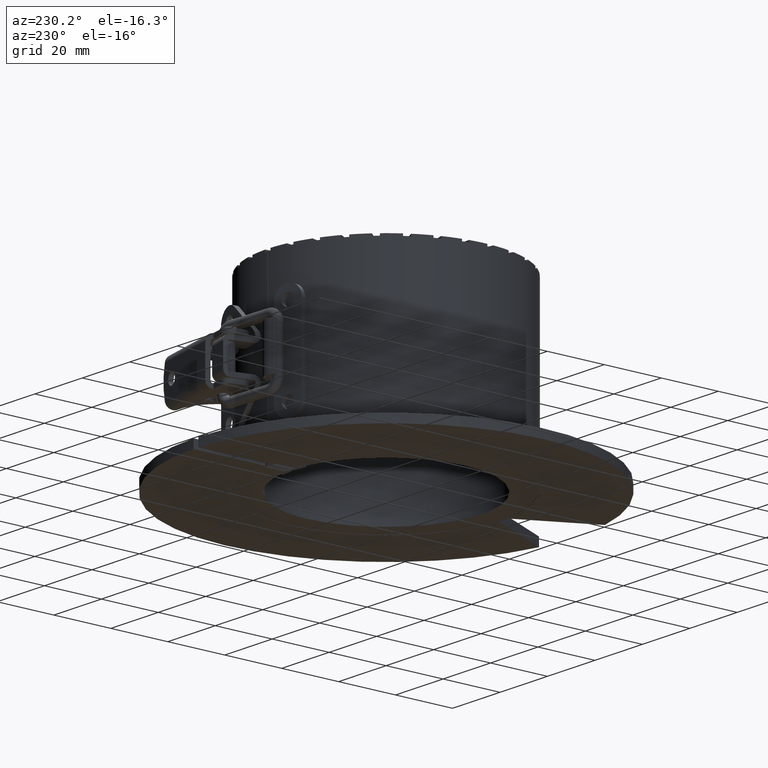
[diagram: clean part render]
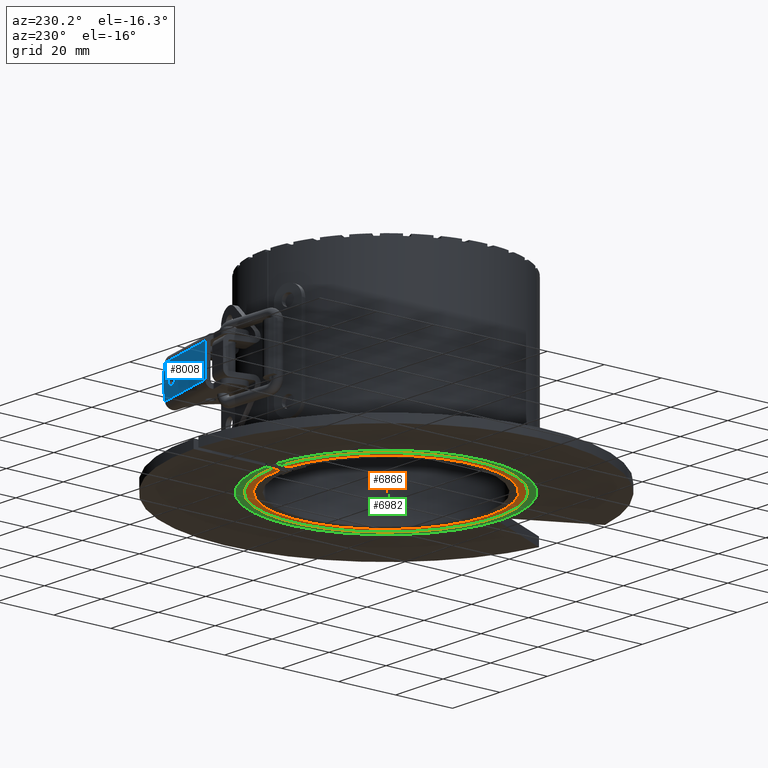
[diagram: same view with three faces highlighted in distinct colors, each labeled with its STEP entity id]
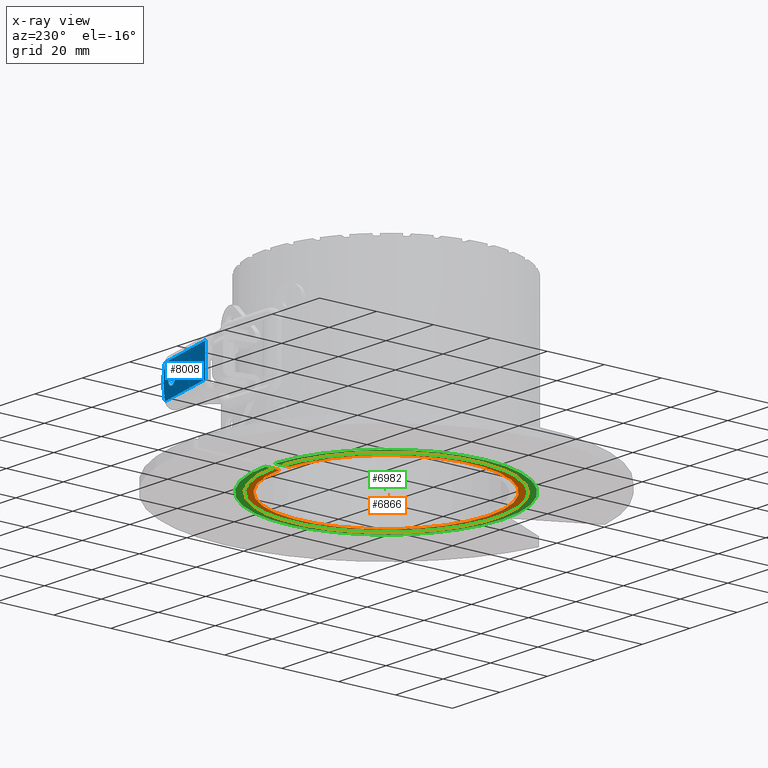
[diagram: x-ray of the same camera — body ghosted, the three highlighted faces saturated]
A machine part, auxiliary view with three faces highlighted in distinct colors.
The next image is the same camera in x-ray (body ghosted, the three faces saturated) — at least one of them is partly hidden behind the body in this view.
Their STEP definitions:

[orange] entity #6866 — the highlighted planar face has unit normal (0, 0, 1).
#6702=CARTESIAN_POINT('',(1.999999999999995,35.744090420655553,-29.949999999999996));
#6703=VERTEX_POINT('',#6702);
#6734=CARTESIAN_POINT('',(-2.000000000000005,35.744090420655553,-29.949999999999996));
#6735=VERTEX_POINT('',#6734);
#6759=CARTESIAN_POINT('',(0.0,0.0,-29.949999999999996));
#6760=DIRECTION('',(0.0,0.0,-1.0));
#6761=DIRECTION('',(0.05586592178771,-0.99843827990658,0.0));
#6762=AXIS2_PLACEMENT_3D('',#6759,#6760,#6761);
#6763=CIRCLE('',#6762,35.799999999999997);
#6764=EDGE_CURVE('',#6703,#6735,#6763,.T.);
#6801=CARTESIAN_POINT('',(-2.000000000000005,38.247745031570162,-29.949999999999996));
#6802=VERTEX_POINT('',#6801);
#6803=CARTESIAN_POINT('',(-2.000000000000005,35.744090420655553,-29.949999999999996));
#6804=DIRECTION('',(0.0,1.0,0.0));
#6805=VECTOR('',#6804,2.503654610914609);
#6806=LINE('',#6803,#6805);
#6807=EDGE_CURVE('',#6735,#6802,#6806,.T.);
#6831=CARTESIAN_POINT('',(1.999999999999995,38.247745031570162,-29.949999999999996));
#6832=VERTEX_POINT('',#6831);
#6839=CARTESIAN_POINT('',(1.999999999999995,38.247745031570162,-29.949999999999996));
#6840=DIRECTION('',(0.0,-1.0,0.0));
#6841=VECTOR('',#6840,2.503654610914616);
#6842=LINE('',#6839,#6841);
#6843=EDGE_CURVE('',#6832,#6703,#6842,.T.);
#6849=CARTESIAN_POINT('',(-2.506912E-015,3.167323118143909,-29.949999999999996));
#6850=DIRECTION('',(0.0,0.0,1.0));
#6851=DIRECTION('',(1.0,0.0,0.0));
#6852=AXIS2_PLACEMENT_3D('',#6849,#6850,#6851);
#6853=PLANE('',#6852);
#6854=ORIENTED_EDGE('',*,*,#6843,.F.);
#6855=CARTESIAN_POINT('',(0.0,0.0,-29.949999999999996));
#6856=DIRECTION('',(0.0,0.0,-1.0));
#6857=DIRECTION('',(0.052219321148825,-0.99863564051097,0.0));
#6858=AXIS2_PLACEMENT_3D('',#6855,#6856,#6857);
#6859=CIRCLE('',#6858,38.29999999999999);
#6860=EDGE_CURVE('',#6832,#6802,#6859,.T.);
#6861=ORIENTED_EDGE('',*,*,#6860,.T.);
#6862=ORIENTED_EDGE('',*,*,#6807,.F.);
#6863=ORIENTED_EDGE('',*,*,#6764,.F.);
#6864=EDGE_LOOP('',(#6854,#6861,#6862,#6863));
#6865=FACE_OUTER_BOUND('',#6864,.T.);
#6866=ADVANCED_FACE('',(#6865),#6853,.F.);

[blue] entity #8008 — the highlighted planar face has unit normal (0.2195, 0.9756, 0).
#7689=CARTESIAN_POINT('',(12.236713257919178,53.314240061724902,-5.450000000000035));
#7690=VERTEX_POINT('',#7689);
#7698=CARTESIAN_POINT('',(35.55533933306657,48.067604432317275,-5.449999999999977));
#7699=VERTEX_POINT('',#7698);
#7700=CARTESIAN_POINT('',(35.555339332700186,48.067604430688931,-5.449999999999977));
#7701=DIRECTION('',(-0.975610251018905,0.219509995459954,-2.303909E-015));
#7702=VECTOR('',#7701,23.90157960178183);
#7703=LINE('',#7700,#7702);
#7704=EDGE_CURVE('',#7699,#7690,#7703,.T.);
#7966=CARTESIAN_POINT('',(36.334286457824419,47.89234317270094,7.850000000000033));
#7967=DIRECTION('',(0.219509995459954,0.975610251018905,2.074216E-016));
#7968=DIRECTION('',(0.975610251018905,-0.219509995459954,2.315665E-015));
#7969=AXIS2_PLACEMENT_3D('',#7966,#7967,#7968);
#7970=PLANE('',#7969);
#7971=ORIENTED_EDGE('',*,*,#7704,.T.);
#7972=CARTESIAN_POINT('',(12.236713257919153,53.314240061724902,5.449999999999968));
#7973=VERTEX_POINT('',#7972);
#7974=CARTESIAN_POINT('',(12.23671325765746,53.314240060561801,5.449999999999969));
#7975=DIRECTION('',(0.0,0.0,-1.0));
#7976=VECTOR('',#7975,10.900000000000002);
#7977=LINE('',#7974,#7976);
#7978=EDGE_CURVE('',#7973,#7690,#7977,.T.);
#7979=ORIENTED_EDGE('',*,*,#7978,.F.);
#7980=CARTESIAN_POINT('',(35.555339333066527,48.067604432317282,5.45000000000003));
#7981=VERTEX_POINT('',#7980);
#7982=CARTESIAN_POINT('',(35.55533933270015,48.067604430688945,5.450000000000026));
#7983=DIRECTION('',(-0.975610251018905,0.219509995459954,-2.303909E-015));
#7984=VECTOR('',#7983,23.901579601781808);
#7985=LINE('',#7982,#7984);
#7986=EDGE_CURVE('',#7981,#7973,#7985,.T.);
#7987=ORIENTED_EDGE('',*,*,#7986,.F.);
#7988=CARTESIAN_POINT('',(17.797691688465239,52.063033086440093,-1.776357E-014));
#7989=DIRECTION('',(-0.219509995459954,-0.975610251018905,-2.074216E-016));
#7990=DIRECTION('',(0.975610251018905,-0.219509995459954,2.315665E-015));
#7991=AXIS2_PLACEMENT_3D('',#7988,#7989,#7990);
#7992=CIRCLE('',#7991,19.000000000000004);
#7993=EDGE_CURVE('',#7699,#7981,#7992,.T.);
#7994=ORIENTED_EDGE('',*,*,#7993,.F.);
#7995=EDGE_LOOP('',(#7971,#7979,#7987,#7994));
#7996=FACE_OUTER_BOUND('',#7995,.T.);
#7997=CARTESIAN_POINT('',(29.700136750895872,49.38501114182862,8.881784E-015));
#7998=VERTEX_POINT('',#7997);
#7999=CARTESIAN_POINT('',(31.651357252933678,48.945991150908711,1.332268E-014));
#8000=DIRECTION('',(0.219509995459954,0.975610251018905,2.074216E-016));
#8001=DIRECTION('',(0.975610251018905,-0.219509995459954,2.315665E-015));
#8002=AXIS2_PLACEMENT_3D('',#7999,#8000,#8001);
#8003=CIRCLE('',#8002,2.0);
#8004=EDGE_CURVE('',#7998,#7998,#8003,.T.);
#8005=ORIENTED_EDGE('',*,*,#8004,.F.);
#8006=EDGE_LOOP('',(#8005));
#8007=FACE_BOUND('',#8006,.T.);
#8008=ADVANCED_FACE('',(#7996,#8007),#7970,.T.);

[green] entity #6982 — the highlighted planar face has unit normal (0, 0, 1).
#6801=CARTESIAN_POINT('',(-2.000000000000005,38.247745031570162,-29.949999999999996));
#6802=VERTEX_POINT('',#6801);
#6831=CARTESIAN_POINT('',(1.999999999999995,38.247745031570162,-29.949999999999996));
#6832=VERTEX_POINT('',#6831);
#6855=CARTESIAN_POINT('',(0.0,0.0,-29.949999999999996));
#6856=DIRECTION('',(0.0,0.0,-1.0));
#6857=DIRECTION('',(0.052219321148825,-0.99863564051097,0.0));
#6858=AXIS2_PLACEMENT_3D('',#6855,#6856,#6857);
#6859=CIRCLE('',#6858,38.29999999999999);
#6860=EDGE_CURVE('',#6832,#6802,#6859,.T.);
#6899=CARTESIAN_POINT('',(-2.000000000000005,40.750950909150575,-29.949999999999996));
#6900=VERTEX_POINT('',#6899);
#6901=CARTESIAN_POINT('',(-2.000000000000005,38.247745031570162,-29.949999999999996));
#6902=DIRECTION('',(0.0,1.0,0.0));
#6903=VECTOR('',#6902,2.503205877580413);
#6904=LINE('',#6901,#6903);
#6905=EDGE_CURVE('',#6802,#6900,#6904,.T.);
#6929=CARTESIAN_POINT('',(1.999999999999995,40.750950909150575,-29.949999999999996));
#6930=VERTEX_POINT('',#6929);
#6937=CARTESIAN_POINT('',(1.999999999999995,40.750950909150575,-29.949999999999996));
#6938=DIRECTION('',(0.0,-1.0,0.0));
#6939=VECTOR('',#6938,2.503205877580413);
#6940=LINE('',#6937,#6939);
#6941=EDGE_CURVE('',#6930,#6832,#6940,.T.);
#6960=CARTESIAN_POINT('',(0.0,0.0,-29.949999999999996));
#6961=DIRECTION('',(0.0,0.0,1.0));
#6962=DIRECTION('',(-0.049019607843137,0.998797816400749,0.0));
#6963=AXIS2_PLACEMENT_3D('',#6960,#6961,#6962);
#6964=CIRCLE('',#6963,40.799999999999997);
#6965=EDGE_CURVE('',#6900,#6930,#6964,.T.);
#6971=CARTESIAN_POINT('',(1.086371E-015,3.394784388176513,-29.949999999999996));
#6972=DIRECTION('',(0.0,0.0,1.0));
#6973=DIRECTION('',(1.0,0.0,0.0));
#6974=AXIS2_PLACEMENT_3D('',#6971,#6972,#6973);
#6975=PLANE('',#6974);
#6976=ORIENTED_EDGE('',*,*,#6965,.F.);
#6977=ORIENTED_EDGE('',*,*,#6905,.F.);
#6978=ORIENTED_EDGE('',*,*,#6860,.F.);
#6979=ORIENTED_EDGE('',*,*,#6941,.F.);
#6980=EDGE_LOOP('',(#6976,#6977,#6978,#6979));
#6981=FACE_OUTER_BOUND('',#6980,.T.);
#6982=ADVANCED_FACE('',(#6981),#6975,.F.);